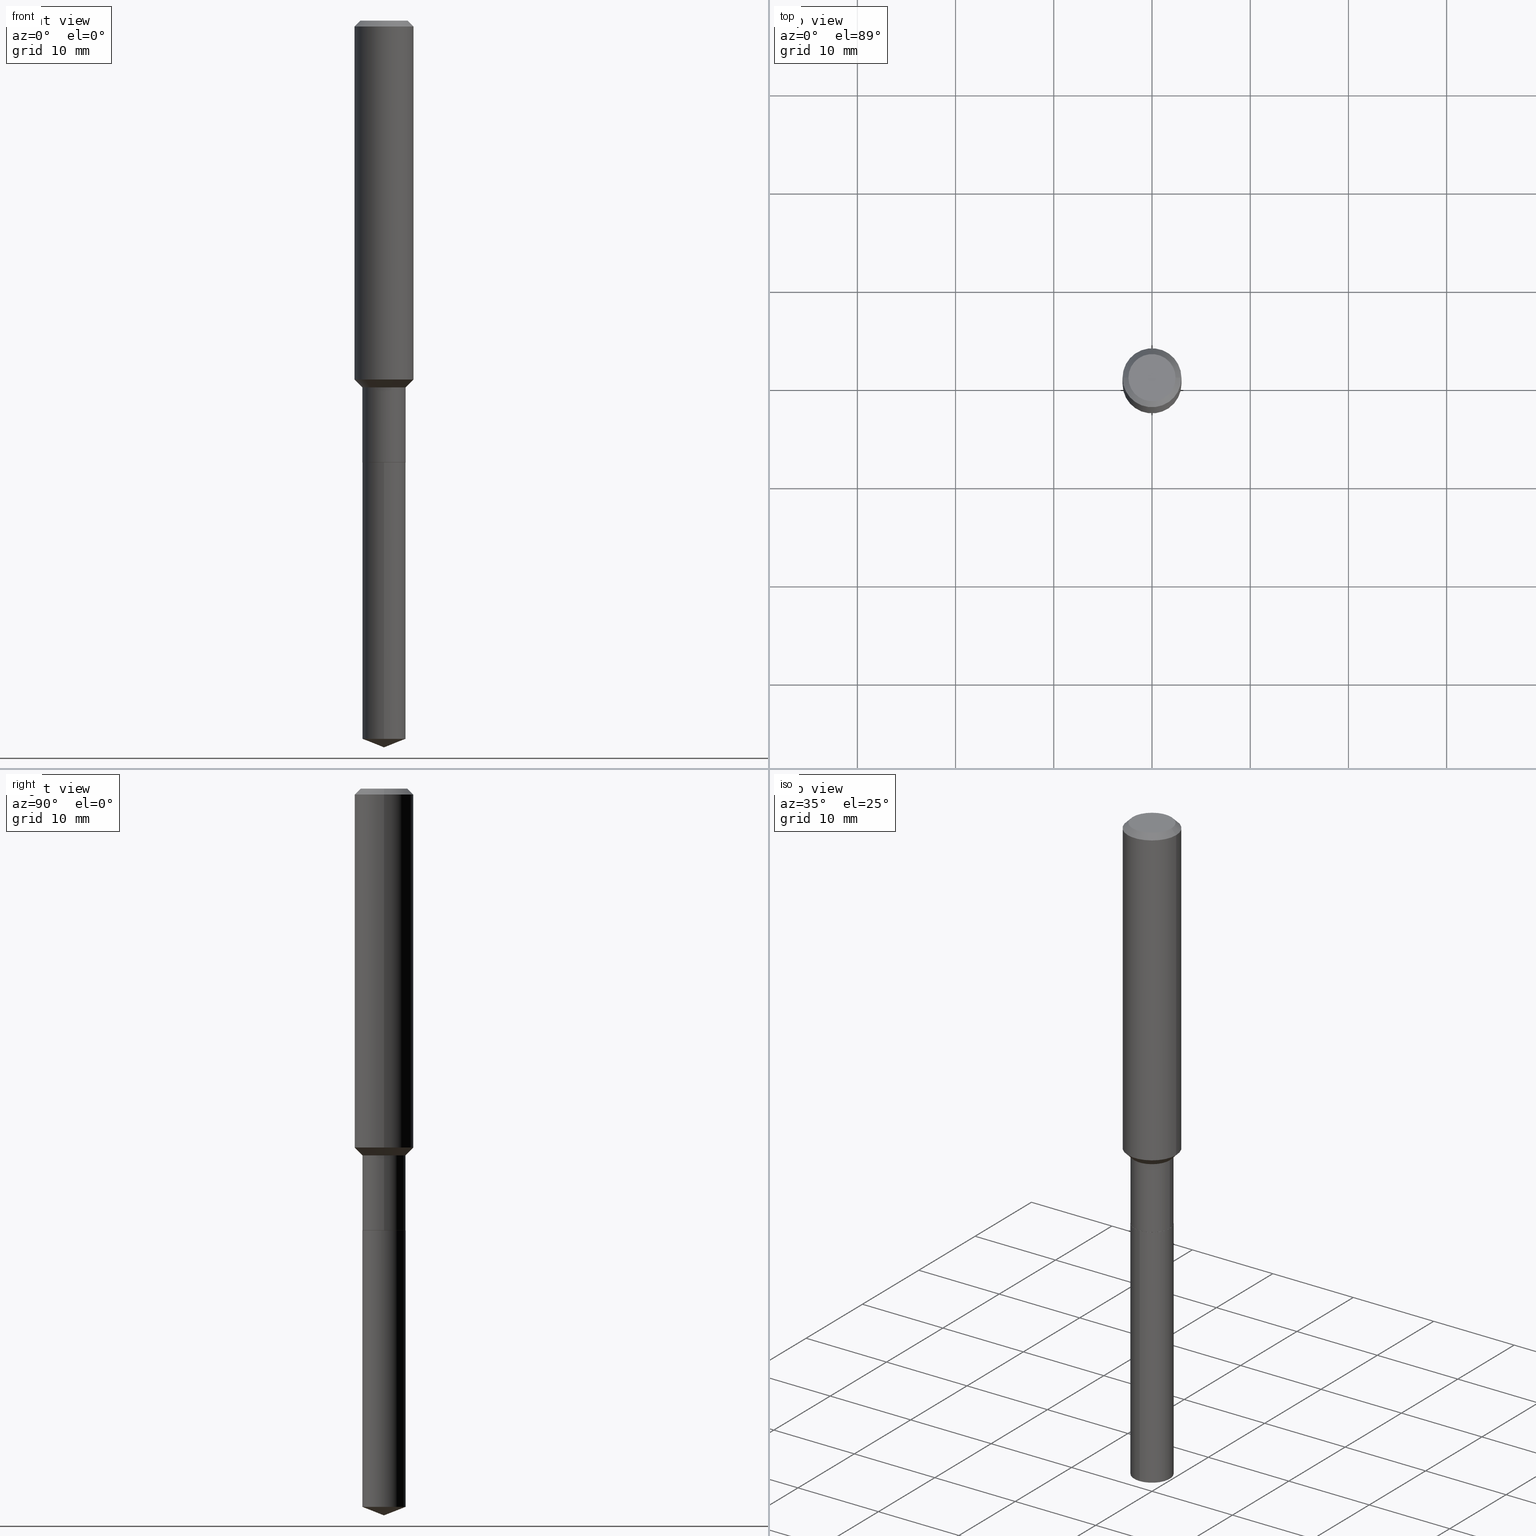
[diagram: canonical four-view strip — front | top / right | iso, engineering-drawing reading convention]
A machine part, canonical four-view strip (front | top / right | iso — engineering-drawing reading convention). The complete STEP part file that produces these views, byte-faithful:
ISO-10303-21;
HEADER;
FILE_DESCRIPTION (( 'STEP AP203' ),
    '1' );
FILE_NAME ('66517.STEP',
    '2024-04-25T00:07:49',
    ( '' ),
    ( '' ),
    'SwSTEP 2.0',
    'SolidWorks 2023',
    '' );
FILE_SCHEMA (( 'CONFIG_CONTROL_DESIGN' ));
ENDSEC;

DATA;
#1 = ORIENTED_EDGE ( 'NONE', *, *, #297, .T. ) ;
#2 = VERTEX_POINT ( 'NONE', #430 ) ;
#3 = MANIFOLD_SOLID_BREP ( 'Body-Move/Copy2[1]', #245 ) ;
#4 = MANIFOLD_SOLID_BREP ( 'Body-Move/Copy2[2]', #285 ) ;
#5 = ORIENTED_EDGE ( 'NONE', *, *, #488, .T. ) ;
#6 = CARTESIAN_POINT ( 'NONE',  ( -0.1181000000000000799, 8.391509709326788873E-16, -5.809262341591047988E-30 ) ) ;
#7 = APPROVAL_PERSON_ORGANIZATION ( #276, #326, #62 ) ;
#8 = CARTESIAN_POINT ( 'NONE',  ( 5.776197320209327532E-31, -8.246878922347559293E-17, -0.02362000000000014088 ) ) ;
#9 = CARTESIAN_POINT ( 'NONE',  ( 7.123701292773481033E-29, -1.017061600276545319E-14, -2.912999999999999812 ) ) ;
#10 = LINE ( 'NONE', #6, #296 ) ;
#11 = APPROVAL_ROLE ( '' ) ;
#12 = VERTEX_POINT ( 'NONE', #433 ) ;
#13 = ORIENTED_EDGE ( 'NONE', *, *, #170, .T. ) ;
#14 = CARTESIAN_POINT ( 'NONE',  ( -0.1180999999999999966, 7.422191030112725094E-16, -0.02362000000000014088 ) ) ;
#15 = DIRECTION ( 'NONE',  ( -2.445468806185136597E-29, 3.491481338843145583E-15, 1.000000000000000000 ) ) ;
#16 = EDGE_CURVE ( 'NONE', #118, #75, #10, .T. ) ;
#17 = APPROVAL_DATE_TIME ( #230, #326 ) ;
#18 = DIRECTION ( 'NONE',  ( -2.445468806185136597E-29, 3.491481338843145583E-15, 1.000000000000000000 ) ) ;
#19 = ORIENTED_EDGE ( 'NONE', *, *, #98, .T. ) ;
#20 = CYLINDRICAL_SURFACE ( 'NONE', #215, 0.08659999999999996867 ) ;
#21 =( NAMED_UNIT ( * ) PLANE_ANGLE_UNIT ( ) SI_UNIT ( $, .RADIAN. ) );
#22 = ORIENTED_EDGE ( 'NONE', *, *, #351, .F. ) ;
#23 =( GEOMETRIC_REPRESENTATION_CONTEXT ( 3 ) GLOBAL_UNCERTAINTY_ASSIGNED_CONTEXT ( ( #94 ) ) GLOBAL_UNIT_ASSIGNED_CONTEXT ( ( #436, #21, #236 ) ) REPRESENTATION_CONTEXT ( 'NONE', 'WORKASPACE' ) );
#24 = CARTESIAN_POINT ( 'NONE',  ( 3.594839145092149699E-29, -5.132477568099422441E-15, -1.469999999999999529 ) ) ;
#25 = CARTESIAN_POINT ( 'NONE',  ( 0.08659999999999995479, -5.737202135987053365E-15, -1.469999999999999529 ) ) ;
#26 = DIRECTION ( 'NONE',  ( 1.000000000000000000, -6.982962677686267499E-15, 4.875432709231658792E-29 ) ) ;
#27 = PERSON_AND_ORGANIZATION_ROLE ( 'creator' ) ;
#28 = EDGE_CURVE ( 'NONE', #101, #294, #234, .T. ) ;
#29 = CARTESIAN_POINT ( 'NONE',  ( -8.915171743640279207E-28, 1.272934080034351403E-13, 36.45707874015747763 ) ) ;
#30 = AXIS2_PLACEMENT_3D ( 'NONE', #315, #443, #428 ) ;
#31 = DIRECTION ( 'NONE',  ( -2.445392125264201489E-29, 3.491591150286331850E-15, 1.000000000000000000 ) ) ;
#32 = DIRECTION ( 'NONE',  ( 1.000000000000000000, -6.982962677686272233E-15, 0.000000000000000000 ) ) ;
#33 = EDGE_CURVE ( 'NONE', #266, #12, #459, .T. ) ;
#34 = ORIENTED_EDGE ( 'NONE', *, *, #233, .T. ) ;
#35 = AXIS2_PLACEMENT_3D ( 'NONE', #161, #121, #340 ) ;
#36 = ORIENTED_EDGE ( 'NONE', *, *, #323, .T. ) ;
#37 = CC_DESIGN_DATE_AND_TIME_ASSIGNMENT ( #463, #475, ( #416 ) ) ;
#38 = CARTESIAN_POINT ( 'NONE',  ( 4.716267017698007905E-46, -6.733579360998555036E-32, -1.928573779297252010E-17 ) ) ;
#39 = EDGE_CURVE ( 'NONE', #352, #451, #319, .T. ) ;
#40 = EDGE_LOOP ( 'NONE', ( #289, #72, #51, #350 ) ) ;
#41 = CARTESIAN_POINT ( 'NONE',  ( 5.776197320209327532E-31, -8.246878922347559293E-17, -0.02362000000000014088 ) ) ;
#42 = ADVANCED_FACE ( 'NONE', ( #420 ), #263, .F. ) ;
#43 = ORIENTED_EDGE ( 'NONE', *, *, #100, .F. ) ;
#44 = DIRECTION ( 'NONE',  ( -2.445392125264201489E-29, 3.491591150286331850E-15, 1.000000000000000000 ) ) ;
#45 = ORIENTED_EDGE ( 'NONE', *, *, #170, .F. ) ;
#46 = VECTOR ( 'NONE', #154, 39.37007874015748143 ) ;
#47 = CARTESIAN_POINT ( 'NONE',  ( 4.331658896395732410E-29, -6.184460895492863090E-15, -1.771299999999999653 ) ) ;
#48 = ORIENTED_EDGE ( 'NONE', *, *, #56, .T. ) ;
#49 = CYLINDRICAL_SURFACE ( 'NONE', #229, 0.08659999999999998255 ) ;
#50 = DIRECTION ( 'NONE',  ( 0.7071067811866320607, -2.468850131083142557E-15, 0.7071067811864629737 ) ) ;
#51 = ORIENTED_EDGE ( 'NONE', *, *, #28, .T. ) ;
#52 = AXIS2_PLACEMENT_3D ( 'NONE', #47, #77, #224 ) ;
#53 = PERSON_AND_ORGANIZATION_ROLE ( 'creator' ) ;
#54 = CC_DESIGN_APPROVAL ( #446, ( #293 ) ) ;
#55 = LINE ( 'NONE', #204, #412 ) ;
#56 = EDGE_CURVE ( 'NONE', #12, #451, #187, .T. ) ;
#57 = APPROVAL_STATUS ( 'not_yet_approved' ) ;
#58 = VERTEX_POINT ( 'NONE', #421 ) ;
#59 = DIRECTION ( 'NONE',  ( -2.445468806185136877E-29, 3.491481338843145188E-15, 1.000000000000000000 ) ) ;
#60 = DIRECTION ( 'NONE',  ( 0.7071067811865476838, -2.468850131082258638E-15, 0.7071067811865473507 ) ) ;
#61 = CARTESIAN_POINT ( 'NONE',  ( -0.08609999999999996823, -5.572683600003417154E-15, -1.771299999999999653 ) ) ;
#62 = APPROVAL_ROLE ( '' ) ;
#63 = ORIENTED_EDGE ( 'NONE', *, *, #456, .F. ) ;
#64 = CC_DESIGN_PERSON_AND_ORGANIZATION_ASSIGNMENT ( #271, #53, ( #293 ) ) ;
#65 = VECTOR ( 'NONE', #465, 39.37007874015748143 ) ;
#66 = CIRCLE ( 'NONE', #85, 0.1181000000000001632 ) ;
#67 = ADVANCED_FACE ( 'NONE', ( #81 ), #228, .F. ) ;
#68 = ORIENTED_EDGE ( 'NONE', *, *, #16, .T. ) ;
#69 = PRODUCT_RELATED_PRODUCT_CATEGORY ( 'detail', '', ( #303 ) ) ;
#70 = CIRCLE ( 'NONE', #411, 0.08659999999999998255 ) ;
#71 = CONICAL_SURFACE ( 'NONE', #103, 0.08659999999999995479, 0.7853981633974485010 ) ;
#72 = ORIENTED_EDGE ( 'NONE', *, *, #137, .T. ) ;
#73 = ORIENTED_EDGE ( 'NONE', *, *, #297, .F. ) ;
#74 = CARTESIAN_POINT ( 'NONE',  ( 6.153300091683170428E-16, 0.08659999999999380693, -1.771300000000000097 ) ) ;
#75 = VERTEX_POINT ( 'NONE', #211 ) ;
#76 = AXIS2_PLACEMENT_3D ( 'NONE', #109, #335, #216 ) ;
#77 = DIRECTION ( 'NONE',  ( -2.445468806185136597E-29, 3.491481338843145583E-15, 1.000000000000000000 ) ) ;
#78 = CARTESIAN_POINT ( 'NONE',  ( 4.331658896395732410E-29, -6.184460895492863090E-15, -1.771299999999999653 ) ) ;
#79 = DIRECTION ( 'NONE',  ( -6.982962677686266711E-15, -1.000000000000000000, 3.498627837350104013E-15 ) ) ;
#80 = DIRECTION ( 'NONE',  ( 1.000000000000000000, -6.982962677686265922E-15, 4.876176775795935793E-29 ) ) ;
#81 = FACE_OUTER_BOUND ( 'NONE', #257, .T. ) ;
#82 = EDGE_CURVE ( 'NONE', #294, #414, #278, .T. ) ;
#83 = CARTESIAN_POINT ( 'NONE',  ( 3.517806877697317779E-29, -5.022495905925862983E-15, -1.438499999999999446 ) ) ;
#84 = COORDINATED_UNIVERSAL_TIME_OFFSET ( 5, 0, .BEHIND. ) ;
#85 = AXIS2_PLACEMENT_3D ( 'NONE', #83, #306, #349 ) ;
#86 = FACE_OUTER_BOUND ( 'NONE', #378, .T. ) ;
#87 = DESIGN_CONTEXT ( 'detailed design', #232, 'design' ) ;
#88 = PERSON_AND_ORGANIZATION_ROLE ( 'design_supplier' ) ;
#89 = ORIENTED_EDGE ( 'NONE', *, *, #98, .F. ) ;
#90 = CARTESIAN_POINT ( 'NONE',  ( 3.594839145092149699E-29, -5.132477568099422441E-15, -1.469999999999999529 ) ) ;
#91 = MECHANICAL_CONTEXT ( 'NONE', #210, 'mechanical' ) ;
#92 = DIRECTION ( 'NONE',  ( 1.000000000000000000, -6.982962677686267499E-15, 4.875432709231658792E-29 ) ) ;
#93 = CARTESIAN_POINT ( 'NONE',  ( 7.040144287003795958E-29, -1.005170309473941622E-14, -2.878887352811745348 ) ) ;
#94 = UNCERTAINTY_MEASURE_WITH_UNIT (LENGTH_MEASURE( 1.000000000000000082E-05 ), #436, 'distance_accuracy_value', 'NONE');
#95 = CONICAL_SURFACE ( 'NONE', #155, 99.94676754583711897, 1.195550537616109743 ) ;
#96 = CARTESIAN_POINT ( 'NONE',  ( -0.09447999999999998066, 7.009847083995354710E-16, -1.928573779297727792E-17 ) ) ;
#97 = CALENDAR_DATE ( 2024, 24, 4 ) ;
#98 = EDGE_CURVE ( 'NONE', #417, #12, #460, .T. ) ;
#99 = DIRECTION ( 'NONE',  ( 2.445468806185136597E-29, -3.491481338843145583E-15, -1.000000000000000000 ) ) ;
#100 = EDGE_CURVE ( 'NONE', #105, #122, #175, .T. ) ;
#101 = VERTEX_POINT ( 'NONE', #396 ) ;
#102 = ORIENTED_EDGE ( 'NONE', *, *, #287, .T. ) ;
#103 = AXIS2_PLACEMENT_3D ( 'NONE', #90, #235, #32 ) ;
#104 = VERTEX_POINT ( 'NONE', #356 ) ;
#105 = VERTEX_POINT ( 'NONE', #444 ) ;
#106 = CYLINDRICAL_SURFACE ( 'NONE', #334, 0.08659999999999996867 ) ;
#107 = VERTEX_POINT ( 'NONE', #280 ) ;
#108 = CARTESIAN_POINT ( 'NONE',  ( 4.331658896395732410E-29, -6.184460895492863090E-15, -1.771299999999999653 ) ) ;
#109 = CARTESIAN_POINT ( 'NONE',  ( 4.331658896395732410E-29, -6.184460895492863090E-15, -1.771299999999999653 ) ) ;
#110 = DIRECTION ( 'NONE',  ( -6.982962677686265922E-15, -1.000000000000000000, 3.154558884138872662E-15 ) ) ;
#111 = VECTOR ( 'NONE', #44, 39.37007874015748143 ) ;
#112 = CARTESIAN_POINT ( 'NONE',  ( 0.000000000000000000, 0.000000000000000000, 0.000000000000000000 ) ) ;
#113 = DIRECTION ( 'NONE',  ( -2.445468806185136877E-29, 3.491481338843145188E-15, 1.000000000000000000 ) ) ;
#114 = EDGE_CURVE ( 'NONE', #105, #183, #398, .T. ) ;
#115 = CYLINDRICAL_SURFACE ( 'NONE', #260, 0.1181000000000000799 ) ;
#116 = ADVANCED_BREP_SHAPE_REPRESENTATION ( '66517', ( #3, #4, #354 ), #23 ) ;
#117 = DIRECTION ( 'NONE',  ( 0.000000000000000000, 0.000000000000000000, 1.000000000000000000 ) ) ;
#118 = VERTEX_POINT ( 'NONE', #132 ) ;
#119 = LINE ( 'NONE', #145, #375 ) ;
#120 = CARTESIAN_POINT ( 'NONE',  ( 4.330436161992639608E-29, -6.182715154823442375E-15, -1.770799999999999930 ) ) ;
#121 = DIRECTION ( 'NONE',  ( -2.445468806185136597E-29, 3.491481338843145583E-15, 1.000000000000000000 ) ) ;
#122 = VERTEX_POINT ( 'NONE', #96 ) ;
#123 = CONICAL_SURFACE ( 'NONE', #153, 0.1180999999999999966, 0.7853981633974460586 ) ;
#124 = DIRECTION ( 'NONE',  ( 1.000000000000000000, -6.982962677686270655E-15, 0.000000000000000000 ) ) ;
#125 = DIRECTION ( 'NONE',  ( -2.445468806185136597E-29, 3.491481338843145583E-15, 1.000000000000000000 ) ) ;
#126 = LINE ( 'NONE', #61, #333 ) ;
#127 = PERSON_AND_ORGANIZATION ( #258, #166 ) ;
#128 = PERSON_AND_ORGANIZATION ( #258, #166 ) ;
#129 = AXIS2_PLACEMENT_3D ( 'NONE', #473, #31, #275 ) ;
#130 = AXIS2_PLACEMENT_3D ( 'NONE', #431, #371, #300 ) ;
#131 = DIRECTION ( 'NONE',  ( 1.000000000000000000, -6.982962677686269866E-15, 0.000000000000000000 ) ) ;
#132 = CARTESIAN_POINT ( 'NONE',  ( -0.1181000000000001632, -4.183344934993183208E-15, -1.438499999999999446 ) ) ;
#133 = ADVANCED_FACE ( 'NONE', ( #243 ), #453, .T. ) ;
#134 = CALENDAR_DATE ( 2024, 24, 4 ) ;
#135 = FACE_OUTER_BOUND ( 'NONE', #457, .T. ) ;
#136 = PERSON_AND_ORGANIZATION ( #258, #166 ) ;
#137 = EDGE_CURVE ( 'NONE', #58, #101, #70, .T. ) ;
#138 = CIRCLE ( 'NONE', #363, 0.1181000000000001632 ) ;
#139 = FACE_OUTER_BOUND ( 'NONE', #247, .T. ) ;
#140 = ADVANCED_FACE ( 'NONE', ( #86 ), #115, .T. ) ;
#141 = EDGE_LOOP ( 'NONE', ( #45, #22 ) ) ;
#142 = DIRECTION ( 'NONE',  ( -6.982962677686266711E-15, -1.000000000000000000, 3.498627837350104013E-15 ) ) ;
#143 = CC_DESIGN_DATE_AND_TIME_ASSIGNMENT ( #282, #445, ( #441 ) ) ;
#144 = ORIENTED_EDGE ( 'NONE', *, *, #114, .T. ) ;
#145 = CARTESIAN_POINT ( 'NONE',  ( -0.08659999999999995479, -4.517147558931176395E-15, -1.469999999999999529 ) ) ;
#146 = AXIS2_PLACEMENT_3D ( 'NONE', #29, #191, #79 ) ;
#147 = LOCAL_TIME ( 20, 7, 49.00000000000000000, #279 ) ;
#148 = DIRECTION ( 'NONE',  ( -2.445468806185136597E-29, 3.491481338843145583E-15, 1.000000000000000000 ) ) ;
#149 = ORIENTED_EDGE ( 'NONE', *, *, #450, .T. ) ;
#150 = EDGE_LOOP ( 'NONE', ( #13, #36, #426, #217 ) ) ;
#151 = DIRECTION ( 'NONE',  ( -2.445392125264201489E-29, 3.491591150286331850E-15, 1.000000000000000000 ) ) ;
#152 = DIRECTION ( 'NONE',  ( 2.445468806185136597E-29, -3.491481338843145583E-15, -1.000000000000000000 ) ) ;
#153 = AXIS2_PLACEMENT_3D ( 'NONE', #338, #99, #366 ) ;
#154 = DIRECTION ( 'NONE',  ( -2.445392125264201489E-29, 3.491591150286331850E-15, 1.000000000000000000 ) ) ;
#155 = AXIS2_PLACEMENT_3D ( 'NONE', #248, #185, #142 ) ;
#156 = EDGE_CURVE ( 'NONE', #266, #417, #261, .T. ) ;
#157 = DIRECTION ( 'NONE',  ( -2.445392125264201489E-29, 3.491591150286331850E-15, 1.000000000000000000 ) ) ;
#158 = PERSON_AND_ORGANIZATION_ROLE ( 'classification_officer' ) ;
#159 = ORIENTED_EDGE ( 'NONE', *, *, #482, .T. ) ;
#160 = DIRECTION ( 'NONE',  ( -2.445468806185136877E-29, 3.491481338843145188E-15, 1.000000000000000000 ) ) ;
#161 = CARTESIAN_POINT ( 'NONE',  ( 4.331658896395732410E-29, -6.184460895492863090E-15, -1.771299999999999653 ) ) ;
#162 = ORIENTED_EDGE ( 'NONE', *, *, #156, .F. ) ;
#163 = CALENDAR_DATE ( 2024, 24, 4 ) ;
#164 = ORIENTED_EDGE ( 'NONE', *, *, #114, .F. ) ;
#165 = CARTESIAN_POINT ( 'NONE',  ( 0.1180999999999999966, -9.071566814582237199E-16, -0.02362000000000014088 ) ) ;
#166 = ORGANIZATION ( 'UNSPECIFIED', 'UNSPECIFIED', '' ) ;
#167 = DIRECTION ( 'NONE',  ( -2.445468806185136877E-29, 3.491481338843145188E-15, 1.000000000000000000 ) ) ;
#168 = ADVANCED_FACE ( 'NONE', ( #194 ), #344, .T. ) ;
#169 = COORDINATED_UNIVERSAL_TIME_OFFSET ( 5, 0, .BEHIND. ) ;
#170 = EDGE_CURVE ( 'NONE', #107, #104, #447, .T. ) ;
#171 = CIRCLE ( 'NONE', #30, 0.08659999999999998255 ) ;
#172 = DIRECTION ( 'NONE',  ( -2.445468806185136597E-29, 3.491481338843145583E-15, 1.000000000000000000 ) ) ;
#173 = ADVANCED_FACE ( 'NONE', ( #381 ), #49, .T. ) ;
#174 = CC_DESIGN_PERSON_AND_ORGANIZATION_ASSIGNMENT ( #388, #27, ( #416 ) ) ;
#175 = CIRCLE ( 'NONE', #448, 0.09447999999999998066 ) ;
#176 = AXIS2_PLACEMENT_3D ( 'NONE', #41, #152, #413 ) ;
#177 = ORIENTED_EDGE ( 'NONE', *, *, #156, .T. ) ;
#178 = ORIENTED_EDGE ( 'NONE', *, *, #255, .F. ) ;
#179 = CARTESIAN_POINT ( 'NONE',  ( 6.153300091682898271E-16, 0.08659999999999380693, -1.771300000000000097 ) ) ;
#180 = ORIENTED_EDGE ( 'NONE', *, *, #33, .T. ) ;
#181 = AXIS2_PLACEMENT_3D ( 'NONE', #108, #281, #80 ) ;
#182 = APPROVAL_PERSON_ORGANIZATION ( #128, #446, #11 ) ;
#183 = VERTEX_POINT ( 'NONE', #165 ) ;
#184 = ORIENTED_EDGE ( 'NONE', *, *, #456, .T. ) ;
#185 = DIRECTION ( 'NONE',  ( -2.445392125264201489E-29, 3.491591150286331850E-15, 1.000000000000000000 ) ) ;
#186 = CARTESIAN_POINT ( 'NONE',  ( 4.331658896395732410E-29, -6.184460895492863090E-15, -1.771299999999999653 ) ) ;
#187 = LINE ( 'NONE', #343, #46 ) ;
#188 = DIRECTION ( 'NONE',  ( 6.611014441532042923E-15, 0.9304175679820235745, 0.3665012267242995780 ) ) ;
#189 = ORIENTED_EDGE ( 'NONE', *, *, #246, .F. ) ;
#190 = LOCAL_TIME ( 20, 7, 49.00000000000000000, #169 ) ;
#191 = DIRECTION ( 'NONE',  ( -2.445392125264201489E-29, 3.491591150286331850E-15, 1.000000000000000000 ) ) ;
#192 = LINE ( 'NONE', #364, #345 ) ;
#193 = PERSON_AND_ORGANIZATION ( #258, #166 ) ;
#194 = FACE_OUTER_BOUND ( 'NONE', #374, .T. ) ;
#195 = LENGTH_MEASURE_WITH_UNIT ( LENGTH_MEASURE( 0.02539999999999999897 ), #466 );
#196 = ORIENTED_EDGE ( 'NONE', *, *, #485, .F. ) ;
#197 = DIRECTION ( 'NONE',  ( -6.982962677686265922E-15, -1.000000000000000000, 3.154558884138872662E-15 ) ) ;
#198 = CARTESIAN_POINT ( 'NONE',  ( -0.08659999999999995479, -5.042266352293185968E-15, -1.469999999999999529 ) ) ;
#199 = CARTESIAN_POINT ( 'NONE',  ( 7.123427260894619081E-29, -1.017100502078408483E-14, -2.912999999999999812 ) ) ;
#200 = VECTOR ( 'NONE', #59, 39.37007874015748143 ) ;
#201 = ADVANCED_FACE ( 'NONE', ( #302 ), #20, .T. ) ;
#202 = CIRCLE ( 'NONE', #406, 0.08659999999999995479 ) ;
#203 = PRODUCT_DEFINITION_SHAPE ( 'NONE', 'NONE',  #416 ) ;
#204 = CARTESIAN_POINT ( 'NONE',  ( -0.08659999999999996867, 6.153300091682465383E-16, -4.259797788160746705E-30 ) ) ;
#205 = DIRECTION ( 'NONE',  ( -6.982962677686265922E-15, -1.000000000000000000, 6.309117768277745325E-15 ) ) ;
#206 = FACE_OUTER_BOUND ( 'NONE', #455, .T. ) ;
#207 = FACE_OUTER_BOUND ( 'NONE', #241, .T. ) ;
#208 = CIRCLE ( 'NONE', #361, 0.09447999999999998066 ) ;
#209 = LOCAL_TIME ( 20, 7, 49.00000000000000000, #214 ) ;
#210 = APPLICATION_CONTEXT ( 'configuration controlled 3d designs of mechanical parts and assemblies' ) ;
#211 = CARTESIAN_POINT ( 'NONE',  ( -0.1180999999999999966, -1.713331376641989642E-15, -0.02362000000000014088 ) ) ;
#212 = ORIENTED_EDGE ( 'NONE', *, *, #379, .T. ) ;
#213 = CARTESIAN_POINT ( 'NONE',  ( 3.594839145092149699E-29, -5.132477568099422441E-15, -1.469999999999999529 ) ) ;
#214 = COORDINATED_UNIVERSAL_TIME_OFFSET ( 5, 0, .BEHIND. ) ;
#215 = AXIS2_PLACEMENT_3D ( 'NONE', #469, #125, #317 ) ;
#216 = DIRECTION ( 'NONE',  ( 1.000000000000000000, -6.982962677686264344E-15, 0.000000000000000000 ) ) ;
#217 = ORIENTED_EDGE ( 'NONE', *, *, #231, .F. ) ;
#218 = LINE ( 'NONE', #179, #111 ) ;
#219 = CARTESIAN_POINT ( 'NONE',  ( 4.331658896395732410E-29, -6.184460895492863090E-15, -1.771299999999999653 ) ) ;
#220 = ORIENTED_EDGE ( 'NONE', *, *, #328, .F. ) ;
#221 = AXIS2_PLACEMENT_3D ( 'NONE', #424, #242, #244 ) ;
#222 = AXIS2_PLACEMENT_3D ( 'NONE', #219, #237, #370 ) ;
#223 = ORIENTED_EDGE ( 'NONE', *, *, #246, .T. ) ;
#224 = DIRECTION ( 'NONE',  ( 1.000000000000000000, -6.982962677686264344E-15, 0.000000000000000000 ) ) ;
#225 = CARTESIAN_POINT ( 'NONE',  ( 7.123427260894617960E-29, -1.017100502078408483E-14, -2.912999999999999812 ) ) ;
#226 = DIRECTION ( 'NONE',  ( 2.445392125264200929E-29, -3.491591150286331850E-15, -1.000000000000000000 ) ) ;
#227 = ADVANCED_FACE ( 'NONE', ( #206 ), #123, .T. ) ;
#228 = PLANE ( 'NONE',  #221 ) ;
#229 = AXIS2_PLACEMENT_3D ( 'NONE', #186, #157, #197 ) ;
#230 = DATE_AND_TIME ( #358, #253 ) ;
#231 = EDGE_CURVE ( 'NONE', #107, #101, #322, .T. ) ;
#232 = APPLICATION_CONTEXT ( 'configuration controlled 3d designs of mechanical parts and assemblies' ) ;
#233 = EDGE_CURVE ( 'NONE', #101, #58, #394, .T. ) ;
#234 = LINE ( 'NONE', #391, #200 ) ;
#235 = DIRECTION ( 'NONE',  ( -2.445468806185136597E-29, 3.491481338843145583E-15, 1.000000000000000000 ) ) ;
#236 =( NAMED_UNIT ( * ) SI_UNIT ( $, .STERADIAN. ) SOLID_ANGLE_UNIT ( ) );
#237 = DIRECTION ( 'NONE',  ( -2.445392125264201489E-29, 3.491591150286331850E-15, 1.000000000000000000 ) ) ;
#238 = CIRCLE ( 'NONE', #369, 0.08659999999999998255 ) ;
#239 = CC_DESIGN_APPROVAL ( #462, ( #441 ) ) ;
#240 = APPLICATION_PROTOCOL_DEFINITION ( 'international standard', 'config_control_design', 1994, #232 ) ;
#241 = EDGE_LOOP ( 'NONE', ( #409, #149, #324, #384 ) ) ;
#242 = DIRECTION ( 'NONE',  ( 2.438088387897960049E-29, -3.491481338843145188E-15, -1.000000000000000000 ) ) ;
#243 = FACE_OUTER_BOUND ( 'NONE', #150, .T. ) ;
#244 = DIRECTION ( 'NONE',  ( -1.000000000000000000, 6.982962677686265922E-15, -4.876176775795935793E-29 ) ) ;
#245 = CLOSED_SHELL ( 'NONE', ( #173, #292, #346, #272, #42 ) ) ;
#246 = EDGE_CURVE ( 'NONE', #451, #352, #171, .T. ) ;
#247 = EDGE_LOOP ( 'NONE', ( #254, #273, #407, #63 ) ) ;
#248 = CARTESIAN_POINT ( 'NONE',  ( -8.915171743640279207E-28, 1.272934080034351403E-13, 36.45707874015747763 ) ) ;
#249 = CARTESIAN_POINT ( 'NONE',  ( 3.594839145092149699E-29, -5.132477568099422441E-15, -1.469999999999999529 ) ) ;
#250 = ORIENTED_EDGE ( 'NONE', *, *, #137, .F. ) ;
#251 = EDGE_LOOP ( 'NONE', ( #43, #144, #295, #73 ) ) ;
#252 = AXIS2_PLACEMENT_3D ( 'NONE', #355, #151, #110 ) ;
#253 = LOCAL_TIME ( 20, 7, 49.00000000000000000, #84 ) ;
#254 = ORIENTED_EDGE ( 'NONE', *, *, #16, .F. ) ;
#255 = EDGE_CURVE ( 'NONE', #183, #75, #427, .T. ) ;
#256 = FACE_OUTER_BOUND ( 'NONE', #251, .T. ) ;
#257 = EDGE_LOOP ( 'NONE', ( #102, #373 ) ) ;
#258 = PERSON ( 'UNSPECIFIED', 'UNSPECIFIED', 'UNSPECIFIED', ('UNSPECIFIED'), ('UNSPECIFIED'), ('UNSPECIFIED') ) ;
#259 = ORIENTED_EDGE ( 'NONE', *, *, #323, .F. ) ;
#260 = AXIS2_PLACEMENT_3D ( 'NONE', #112, #423, #342 ) ;
#261 = LINE ( 'NONE', #9, #327 ) ;
#262 = CC_DESIGN_APPROVAL ( #326, ( #416 ) ) ;
#263 = PLANE ( 'NONE',  #418 ) ;
#264 = CYLINDRICAL_SURFACE ( 'NONE', #130, 0.1181000000000000799 ) ;
#265 = ADVANCED_FACE ( 'NONE', ( #311 ), #458, .F. ) ;
#266 = VERTEX_POINT ( 'NONE', #225 ) ;
#267 = AXIS2_PLACEMENT_3D ( 'NONE', #390, #472, #439 ) ;
#268 = EDGE_LOOP ( 'NONE', ( #309, #212, #189, #325 ) ) ;
#269 = AXIS2_PLACEMENT_3D ( 'NONE', #249, #318, #321 ) ;
#270 = CARTESIAN_POINT ( 'NONE',  ( 0.08659999999999995479, -5.737202135987053365E-15, -1.469999999999999529 ) ) ;
#271 = PERSON_AND_ORGANIZATION ( #258, #166 ) ;
#272 = ADVANCED_FACE ( 'NONE', ( #299 ), #332, .T. ) ;
#273 = ORIENTED_EDGE ( 'NONE', *, *, #454, .T. ) ;
#274 = APPLICATION_PROTOCOL_DEFINITION ( 'international standard', 'config_control_design', 1994, #210 ) ;
#275 = DIRECTION ( 'NONE',  ( -6.982962677686265922E-15, -1.000000000000000000, 6.309117768277745325E-15 ) ) ;
#276 = PERSON_AND_ORGANIZATION ( #258, #166 ) ;
#277 = FACE_OUTER_BOUND ( 'NONE', #438, .T. ) ;
#278 = CIRCLE ( 'NONE', #353, 0.08659999999999995479 ) ;
#279 = COORDINATED_UNIVERSAL_TIME_OFFSET ( 5, 0, .BEHIND. ) ;
#280 = CARTESIAN_POINT ( 'NONE',  ( 0.08609999999999996823, -6.785693982041650218E-15, -1.771299999999999653 ) ) ;
#281 = DIRECTION ( 'NONE',  ( -2.438088387897960049E-29, 3.491481338843145188E-15, 1.000000000000000000 ) ) ;
#282 = DATE_AND_TIME ( #134, #477 ) ;
#283 = DIRECTION ( 'NONE',  ( 1.000000000000000000, -6.982962677686264344E-15, 0.000000000000000000 ) ) ;
#284 = SHAPE_DEFINITION_REPRESENTATION ( #203, #116 ) ;
#285 = CLOSED_SHELL ( 'NONE', ( #133, #360, #140, #331, #201, #385, #337, #471, #227, #67, #265, #168 ) ) ;
#286 = CONICAL_SURFACE ( 'NONE', #269, 0.08659999999999995479, 0.7853981633974485010 ) ;
#287 = EDGE_CURVE ( 'NONE', #122, #105, #208, .T. ) ;
#288 = CARTESIAN_POINT ( 'NONE',  ( 0.08609999999999996823, -6.785693982041650218E-15, -1.771299999999999653 ) ) ;
#289 = ORIENTED_EDGE ( 'NONE', *, *, #488, .F. ) ;
#290 = ORIENTED_EDGE ( 'NONE', *, *, #400, .F. ) ;
#291 = ORIENTED_EDGE ( 'NONE', *, *, #422, .F. ) ;
#292 = ADVANCED_FACE ( 'NONE', ( #399 ), #489, .T. ) ;
#293 = PRODUCT_DEFINITION_FORMATION_WITH_SPECIFIED_SOURCE ( 'ANY', '', #303, .NOT_KNOWN. ) ;
#294 = VERTEX_POINT ( 'NONE', #270 ) ;
#295 = ORIENTED_EDGE ( 'NONE', *, *, #255, .T. ) ;
#296 = VECTOR ( 'NONE', #113, 39.37007874015748143 ) ;
#297 = EDGE_CURVE ( 'NONE', #122, #75, #308, .T. ) ;
#298 = VECTOR ( 'NONE', #60, 39.37007874015748143 ) ;
#299 = FACE_OUTER_BOUND ( 'NONE', #329, .T. ) ;
#300 = DIRECTION ( 'NONE',  ( 1.000000000000000000, -6.982962677686266711E-15, 4.876176775795936353E-29 ) ) ;
#301 = DIRECTION ( 'NONE',  ( -6.497071151882095381E-15, -0.9304175679820211320, 0.3665012267243061284 ) ) ;
#302 = FACE_OUTER_BOUND ( 'NONE', #483, .T. ) ;
#303 = PRODUCT ( '66517', '66517', '', ( #91 ) ) ;
#304 = COORDINATED_UNIVERSAL_TIME_OFFSET ( 5, 0, .BEHIND. ) ;
#305 = APPROVAL_DATE_TIME ( #383, #446 ) ;
#306 = DIRECTION ( 'NONE',  ( -2.445468806185136597E-29, 3.491481338843145583E-15, 1.000000000000000000 ) ) ;
#307 = CIRCLE ( 'NONE', #461, 0.1180999999999999966 ) ;
#308 = LINE ( 'NONE', #14, #65 ) ;
#309 = ORIENTED_EDGE ( 'NONE', *, *, #328, .T. ) ;
#310 = DIRECTION ( 'NONE',  ( 1.000000000000000000, -6.982962677686272233E-15, 0.000000000000000000 ) ) ;
#311 = FACE_OUTER_BOUND ( 'NONE', #141, .T. ) ;
#312 = CARTESIAN_POINT ( 'NONE',  ( 4.716267017698007905E-46, -6.733579360998555036E-32, -1.928573779297252010E-17 ) ) ;
#313 = DIRECTION ( 'NONE',  ( 1.000000000000000000, 0.000000000000000000, 0.000000000000000000 ) ) ;
#314 = ORIENTED_EDGE ( 'NONE', *, *, #351, .T. ) ;
#315 = CARTESIAN_POINT ( 'NONE',  ( 4.331658896395732410E-29, -6.184460895492863090E-15, -1.771299999999999653 ) ) ;
#316 = DIRECTION ( 'NONE',  ( 0.7071067811865459074, -7.319954787623249734E-15, -0.7071067811865491270 ) ) ;
#317 = DIRECTION ( 'NONE',  ( 1.000000000000000000, -6.982962677686267499E-15, 4.876176775795936353E-29 ) ) ;
#318 = DIRECTION ( 'NONE',  ( -2.445468806185136597E-29, 3.491481338843145583E-15, 1.000000000000000000 ) ) ;
#319 = CIRCLE ( 'NONE', #252, 0.08659999999999998255 ) ;
#320 = DIRECTION ( 'NONE',  ( -2.445468806185136597E-29, 3.491481338843145583E-15, 1.000000000000000000 ) ) ;
#321 = DIRECTION ( 'NONE',  ( 1.000000000000000000, -6.982962677686272233E-15, 0.000000000000000000 ) ) ;
#322 = LINE ( 'NONE', #288, #405 ) ;
#323 = EDGE_CURVE ( 'NONE', #104, #58, #126, .T. ) ;
#324 = ORIENTED_EDGE ( 'NONE', *, *, #485, .T. ) ;
#325 = ORIENTED_EDGE ( 'NONE', *, *, #56, .F. ) ;
#326 = APPROVAL ( #397, 'UNSPECIFIED' ) ;
#327 = VECTOR ( 'NONE', #188, 39.37007874015748143 ) ;
#328 = EDGE_CURVE ( 'NONE', #12, #417, #238, .T. ) ;
#329 = EDGE_LOOP ( 'NONE', ( #468, #19, #48, #362 ) ) ;
#330 = DIMENSIONAL_EXPONENTS ( 1.000000000000000000, 0.000000000000000000, 0.000000000000000000, 0.000000000000000000, 0.000000000000000000, 0.000000000000000000, 0.000000000000000000 ) ;
#331 = ADVANCED_FACE ( 'NONE', ( #277 ), #71, .T. ) ;
#332 = CYLINDRICAL_SURFACE ( 'NONE', #222, 0.08659999999999998255 ) ;
#333 = VECTOR ( 'NONE', #387, 39.37007874015748143 ) ;
#334 = AXIS2_PLACEMENT_3D ( 'NONE', #415, #376, #339 ) ;
#335 = DIRECTION ( 'NONE',  ( -2.445468806185136597E-29, 3.491481338843145583E-15, 1.000000000000000000 ) ) ;
#336 = ORIENTED_EDGE ( 'NONE', *, *, #82, .T. ) ;
#337 = ADVANCED_FACE ( 'NONE', ( #207 ), #286, .T. ) ;
#338 = CARTESIAN_POINT ( 'NONE',  ( 5.776197320209327532E-31, -8.246878922347559293E-17, -0.02362000000000014088 ) ) ;
#339 = DIRECTION ( 'NONE',  ( 1.000000000000000000, -6.982962677686267499E-15, 4.876176775795936353E-29 ) ) ;
#340 = DIRECTION ( 'NONE',  ( 1.000000000000000000, -6.982962677686264344E-15, 0.000000000000000000 ) ) ;
#341 = DIRECTION ( 'NONE',  ( -2.445468806185136597E-29, 3.491481338843145583E-15, 1.000000000000000000 ) ) ;
#342 = DIRECTION ( 'NONE',  ( 1.000000000000000000, -6.982962677686266711E-15, 4.876176775795936353E-29 ) ) ;
#343 = CARTESIAN_POINT ( 'NONE',  ( -6.047245678875872412E-16, -0.08660000000000617204, -1.771299999999999430 ) ) ;
#344 = CONICAL_SURFACE ( 'NONE', #35, 0.08609999999999996823, 0.7853981633975678500 ) ;
#345 = VECTOR ( 'NONE', #160, 39.37007874015748143 ) ;
#346 = ADVANCED_FACE ( 'NONE', ( #135 ), #95, .T. ) ;
#347 = CARTESIAN_POINT ( 'NONE',  ( -6.047245678875872412E-16, -0.08660000000000617204, -1.771299999999999430 ) ) ;
#348 = SECURITY_CLASSIFICATION_LEVEL ( 'unclassified' ) ;
#349 = DIRECTION ( 'NONE',  ( 1.000000000000000000, -6.982962677686270655E-15, 0.000000000000000000 ) ) ;
#350 = ORIENTED_EDGE ( 'NONE', *, *, #450, .F. ) ;
#351 = EDGE_CURVE ( 'NONE', #104, #107, #419, .T. ) ;
#352 = VERTEX_POINT ( 'NONE', #74 ) ;
#353 = AXIS2_PLACEMENT_3D ( 'NONE', #24, #320, #310 ) ;
#354 = AXIS2_PLACEMENT_3D ( 'NONE', #470, #117, #313 ) ;
#355 = CARTESIAN_POINT ( 'NONE',  ( 4.331658896395732410E-29, -6.184460895492863090E-15, -1.771299999999999653 ) ) ;
#356 = CARTESIAN_POINT ( 'NONE',  ( -0.08609999999999996823, -5.570034372829306742E-15, -1.771299999999999653 ) ) ;
#357 = DIRECTION ( 'NONE',  ( -2.445468806185136597E-29, 3.491481338843145583E-15, 1.000000000000000000 ) ) ;
#358 = CALENDAR_DATE ( 2024, 24, 4 ) ;
#359 = CARTESIAN_POINT ( 'NONE',  ( 0.1180999999999999966, -8.926936027602933910E-16, -0.02362000000000014088 ) ) ;
#360 = ADVANCED_FACE ( 'NONE', ( #256 ), #395, .T. ) ;
#361 = AXIS2_PLACEMENT_3D ( 'NONE', #38, #357, #26 ) ;
#362 = ORIENTED_EDGE ( 'NONE', *, *, #39, .F. ) ;
#363 = AXIS2_PLACEMENT_3D ( 'NONE', #380, #341, #124 ) ;
#364 = CARTESIAN_POINT ( 'NONE',  ( 0.1181000000000000799, -8.246878922347486570E-16, 5.758764772215004644E-30 ) ) ;
#365 = APPROVAL_STATUS ( 'not_yet_approved' ) ;
#366 = DIRECTION ( 'NONE',  ( -1.000000000000000000, 6.982962677686266711E-15, 0.000000000000000000 ) ) ;
#367 = ORIENTED_EDGE ( 'NONE', *, *, #39, .T. ) ;
#368 = APPROVAL_ROLE ( '' ) ;
#369 = AXIS2_PLACEMENT_3D ( 'NONE', #93, #434, #205 ) ;
#370 = DIRECTION ( 'NONE',  ( -6.982962677686265922E-15, -1.000000000000000000, 3.154558884138872662E-15 ) ) ;
#371 = DIRECTION ( 'NONE',  ( -2.445468806185136597E-29, 3.491481338843145583E-15, 1.000000000000000000 ) ) ;
#372 = ORIENTED_EDGE ( 'NONE', *, *, #33, .F. ) ;
#373 = ORIENTED_EDGE ( 'NONE', *, *, #100, .T. ) ;
#374 = EDGE_LOOP ( 'NONE', ( #259, #314, #452, #250 ) ) ;
#375 = VECTOR ( 'NONE', #487, 39.37007874015748143 ) ;
#376 = DIRECTION ( 'NONE',  ( -2.445468806185136597E-29, 3.491481338843145583E-15, 1.000000000000000000 ) ) ;
#377 = DIRECTION ( 'NONE',  ( -2.445468806185136597E-29, 3.491481338843145583E-15, 1.000000000000000000 ) ) ;
#378 = EDGE_LOOP ( 'NONE', ( #389, #68, #178, #291 ) ) ;
#379 = EDGE_CURVE ( 'NONE', #417, #352, #218, .T. ) ;
#380 = CARTESIAN_POINT ( 'NONE',  ( 3.517806877697317779E-29, -5.022495905925862983E-15, -1.438499999999999446 ) ) ;
#381 = FACE_OUTER_BOUND ( 'NONE', #268, .T. ) ;
#382 = DIRECTION ( 'NONE',  ( 6.982962677686265922E-15, 1.000000000000000000, -3.491591150286331850E-15 ) ) ;
#383 = DATE_AND_TIME ( #442, #147 ) ;
#384 = ORIENTED_EDGE ( 'NONE', *, *, #454, .F. ) ;
#385 = ADVANCED_FACE ( 'NONE', ( #490 ), #106, .T. ) ;
#386 = AXIS2_PLACEMENT_3D ( 'NONE', #120, #18, #131 ) ;
#387 = DIRECTION ( 'NONE',  ( -0.7071067811866320607, 7.493145998870660238E-15, 0.7071067811864629737 ) ) ;
#388 = PERSON_AND_ORGANIZATION ( #258, #166 ) ;
#389 = ORIENTED_EDGE ( 'NONE', *, *, #400, .T. ) ;
#390 = CARTESIAN_POINT ( 'NONE',  ( 5.776197320209327532E-31, -8.246878922347559293E-17, -0.02362000000000014088 ) ) ;
#391 = CARTESIAN_POINT ( 'NONE',  ( 0.08659999999999996867, -6.047245678876305299E-16, 4.222769087839279152E-30 ) ) ;
#392 = LINE ( 'NONE', #25, #298 ) ;
#393 = DIRECTION ( 'NONE',  ( 1.000000000000000000, -6.982962677686272233E-15, 0.000000000000000000 ) ) ;
#394 = CIRCLE ( 'NONE', #386, 0.08659999999999998255 ) ;
#395 = CONICAL_SURFACE ( 'NONE', #176, 0.1180999999999999966, 0.7853981633974460586 ) ;
#396 = CARTESIAN_POINT ( 'NONE',  ( 0.08659999999999998255, -6.787439722711072510E-15, -1.770799999999999930 ) ) ;
#397 = APPROVAL_STATUS ( 'not_yet_approved' ) ;
#398 = LINE ( 'NONE', #359, #479 ) ;
#399 = FACE_OUTER_BOUND ( 'NONE', #410, .T. ) ;
#400 = EDGE_CURVE ( 'NONE', #2, #118, #66, .T. ) ;
#401 = CARTESIAN_POINT ( 'NONE',  ( 4.331658896395732410E-29, -6.184460895492863090E-15, -1.771299999999999653 ) ) ;
#402 = DATE_AND_TIME ( #97, #209 ) ;
#403 = CC_DESIGN_PERSON_AND_ORGANIZATION_ASSIGNMENT ( #127, #425, ( #303 ) ) ;
#404 = CARTESIAN_POINT ( 'NONE',  ( 4.330436161992639608E-29, -6.182715154823442375E-15, -1.770799999999999930 ) ) ;
#405 = VECTOR ( 'NONE', #50, 39.37007874015748143 ) ;
#406 = AXIS2_PLACEMENT_3D ( 'NONE', #213, #148, #393 ) ;
#407 = ORIENTED_EDGE ( 'NONE', *, *, #422, .T. ) ;
#408 = APPROVAL_DATE_TIME ( #402, #462 ) ;
#409 = ORIENTED_EDGE ( 'NONE', *, *, #482, .F. ) ;
#410 = EDGE_LOOP ( 'NONE', ( #372, #177, #220 ) ) ;
#411 = AXIS2_PLACEMENT_3D ( 'NONE', #404, #377, #467 ) ;
#412 = VECTOR ( 'NONE', #167, 39.37007874015748143 ) ;
#413 = DIRECTION ( 'NONE',  ( -1.000000000000000000, 6.982962677686266711E-15, 0.000000000000000000 ) ) ;
#414 = VERTEX_POINT ( 'NONE', #198 ) ;
#415 = CARTESIAN_POINT ( 'NONE',  ( 0.000000000000000000, 0.000000000000000000, 0.000000000000000000 ) ) ;
#416 = PRODUCT_DEFINITION ( 'UNKNOWN', '', #293, #87 ) ;
#417 = VERTEX_POINT ( 'NONE', #435 ) ;
#418 = AXIS2_PLACEMENT_3D ( 'NONE', #78, #226, #382 ) ;
#419 = CIRCLE ( 'NONE', #76, 0.08609999999999996823 ) ;
#420 = FACE_OUTER_BOUND ( 'NONE', #486, .T. ) ;
#421 = CARTESIAN_POINT ( 'NONE',  ( -0.08659999999999998255, -5.042266352293185968E-15, -1.770799999999999930 ) ) ;
#422 = EDGE_CURVE ( 'NONE', #2, #183, #192, .T. ) ;
#423 = DIRECTION ( 'NONE',  ( -2.445468806185136597E-29, 3.491481338843145583E-15, 1.000000000000000000 ) ) ;
#424 = CARTESIAN_POINT ( 'NONE',  ( 2.358133508849003952E-46, -3.366789680499277518E-32, -9.642868896486260050E-18 ) ) ;
#425 = PERSON_AND_ORGANIZATION_ROLE ( 'design_owner' ) ;
#426 = ORIENTED_EDGE ( 'NONE', *, *, #233, .F. ) ;
#427 = CIRCLE ( 'NONE', #267, 0.1180999999999999966 ) ;
#428 = DIRECTION ( 'NONE',  ( -6.982962677686265922E-15, -1.000000000000000000, 3.154558884138872662E-15 ) ) ;
#429 = APPROVAL_PERSON_ORGANIZATION ( #136, #462, #368 ) ;
#430 = CARTESIAN_POINT ( 'NONE',  ( 0.1181000000000001632, -5.847183798160612034E-15, -1.438499999999999446 ) ) ;
#431 = CARTESIAN_POINT ( 'NONE',  ( 0.000000000000000000, 0.000000000000000000, 0.000000000000000000 ) ) ;
#432 = PERSON_AND_ORGANIZATION ( #258, #166 ) ;
#433 = CARTESIAN_POINT ( 'NONE',  ( -6.047245678875604199E-16, -0.08660000000001008558, -2.878887352811744460 ) ) ;
#434 = DIRECTION ( 'NONE',  ( -2.445392125264201489E-29, 3.491591150286331850E-15, 1.000000000000000000 ) ) ;
#435 = CARTESIAN_POINT ( 'NONE',  ( 6.153300091683173386E-16, 0.08659999999998996278, -2.878887352811745792 ) ) ;
#436 =( CONVERSION_BASED_UNIT ( 'INCH', #195 ) LENGTH_UNIT ( ) NAMED_UNIT ( #330 ) );
#437 = DIRECTION ( 'NONE',  ( -2.445468806185136597E-29, 3.491481338843145583E-15, 1.000000000000000000 ) ) ;
#438 = EDGE_LOOP ( 'NONE', ( #336, #159, #290, #196 ) ) ;
#439 = DIRECTION ( 'NONE',  ( 1.000000000000000000, -6.982962677686266711E-15, 0.000000000000000000 ) ) ;
#440 = AXIS2_PLACEMENT_3D ( 'NONE', #401, #172, #283 ) ;
#441 = SECURITY_CLASSIFICATION ( '', '', #348 ) ;
#442 = CALENDAR_DATE ( 2024, 24, 4 ) ;
#443 = DIRECTION ( 'NONE',  ( -2.445392125264201489E-29, 3.491591150286331850E-15, 1.000000000000000000 ) ) ;
#444 = CARTESIAN_POINT ( 'NONE',  ( 0.09447999999999998066, -7.704367267948738690E-16, -1.928573779296752193E-17 ) ) ;
#445 = DATE_TIME_ROLE ( 'classification_date' ) ;
#446 = APPROVAL ( #57, 'UNSPECIFIED' ) ;
#447 = CIRCLE ( 'NONE', #52, 0.08609999999999996823 ) ;
#448 = AXIS2_PLACEMENT_3D ( 'NONE', #312, #437, #92 ) ;
#449 = ORIENTED_EDGE ( 'NONE', *, *, #287, .F. ) ;
#450 = EDGE_CURVE ( 'NONE', #414, #294, #202, .T. ) ;
#451 = VERTEX_POINT ( 'NONE', #347 ) ;
#452 = ORIENTED_EDGE ( 'NONE', *, *, #231, .T. ) ;
#453 = CONICAL_SURFACE ( 'NONE', #440, 0.08609999999999996823, 0.7853981633975678500 ) ;
#454 = EDGE_CURVE ( 'NONE', #118, #2, #138, .T. ) ;
#455 = EDGE_LOOP ( 'NONE', ( #164, #449, #1, #184 ) ) ;
#456 = EDGE_CURVE ( 'NONE', #75, #183, #307, .T. ) ;
#457 = EDGE_LOOP ( 'NONE', ( #162, #180, #89 ) ) ;
#458 = PLANE ( 'NONE',  #181 ) ;
#459 = LINE ( 'NONE', #199, #476 ) ;
#460 = CIRCLE ( 'NONE', #129, 0.08659999999999998255 ) ;
#461 = AXIS2_PLACEMENT_3D ( 'NONE', #8, #15, #481 ) ;
#462 = APPROVAL ( #365, 'UNSPECIFIED' ) ;
#463 = DATE_AND_TIME ( #163, #190 ) ;
#464 = ORIENTED_EDGE ( 'NONE', *, *, #82, .F. ) ;
#465 = DIRECTION ( 'NONE',  ( -0.7071067811865459074, 2.468850131082240100E-15, -0.7071067811865491270 ) ) ;
#466 =( LENGTH_UNIT ( ) NAMED_UNIT ( * ) SI_UNIT ( $, .METRE. ) );
#467 = DIRECTION ( 'NONE',  ( 1.000000000000000000, -6.982962677686269866E-15, 0.000000000000000000 ) ) ;
#468 = ORIENTED_EDGE ( 'NONE', *, *, #379, .F. ) ;
#469 = CARTESIAN_POINT ( 'NONE',  ( 0.000000000000000000, 0.000000000000000000, 0.000000000000000000 ) ) ;
#470 = CARTESIAN_POINT ( 'NONE',  ( 0.000000000000000000, 0.000000000000000000, 0.000000000000000000 ) ) ;
#471 = ADVANCED_FACE ( 'NONE', ( #139 ), #264, .T. ) ;
#472 = DIRECTION ( 'NONE',  ( -2.445468806185136597E-29, 3.491481338843145583E-15, 1.000000000000000000 ) ) ;
#473 = CARTESIAN_POINT ( 'NONE',  ( 7.040144287003795958E-29, -1.005170309473941622E-14, -2.878887352811745348 ) ) ;
#474 = CC_DESIGN_PERSON_AND_ORGANIZATION_ASSIGNMENT ( #432, #158, ( #441 ) ) ;
#475 = DATE_TIME_ROLE ( 'creation_date' ) ;
#476 = VECTOR ( 'NONE', #301, 39.37007874015748854 ) ;
#477 = LOCAL_TIME ( 20, 7, 49.00000000000000000, #304 ) ;
#478 = ORIENTED_EDGE ( 'NONE', *, *, #28, .F. ) ;
#479 = VECTOR ( 'NONE', #316, 39.37007874015748143 ) ;
#480 = CC_DESIGN_SECURITY_CLASSIFICATION ( #441, ( #293 ) ) ;
#481 = DIRECTION ( 'NONE',  ( 1.000000000000000000, -6.982962677686266711E-15, 0.000000000000000000 ) ) ;
#482 = EDGE_CURVE ( 'NONE', #414, #118, #119, .T. ) ;
#483 = EDGE_LOOP ( 'NONE', ( #34, #5, #464, #478 ) ) ;
#484 = CC_DESIGN_PERSON_AND_ORGANIZATION_ASSIGNMENT ( #193, #88, ( #293 ) ) ;
#485 = EDGE_CURVE ( 'NONE', #294, #2, #392, .T. ) ;
#486 = EDGE_LOOP ( 'NONE', ( #223, #367 ) ) ;
#487 = DIRECTION ( 'NONE',  ( -0.7071067811865476838, 7.493145998870354160E-15, 0.7071067811865473507 ) ) ;
#488 = EDGE_CURVE ( 'NONE', #58, #414, #55, .T. ) ;
#489 = CONICAL_SURFACE ( 'NONE', #146, 99.94676754583711897, 1.195550537616109743 ) ;
#490 = FACE_OUTER_BOUND ( 'NONE', #40, .T. ) ;
ENDSEC;
END-ISO-10303-21;
